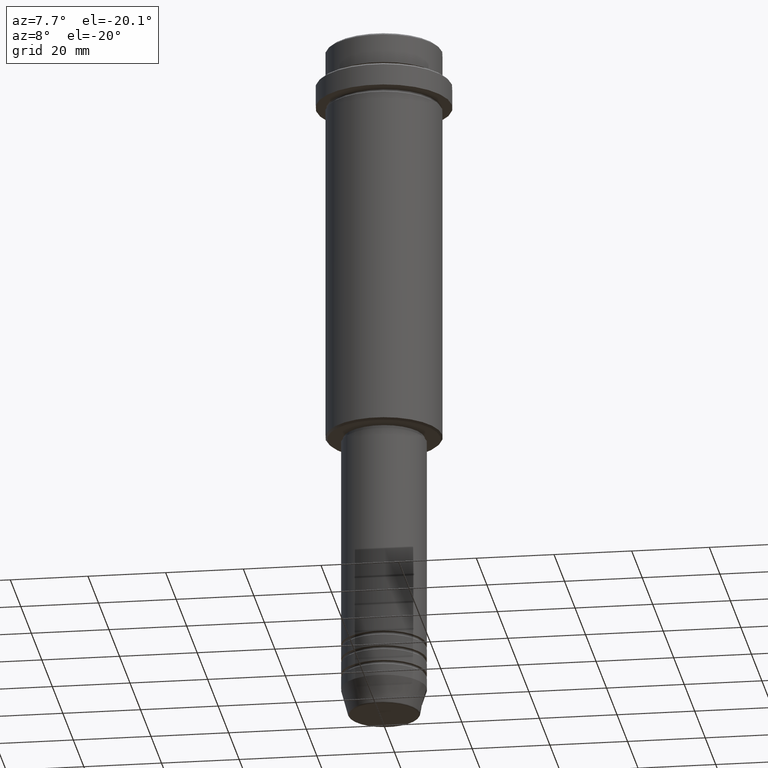
[diagram: clean part render]
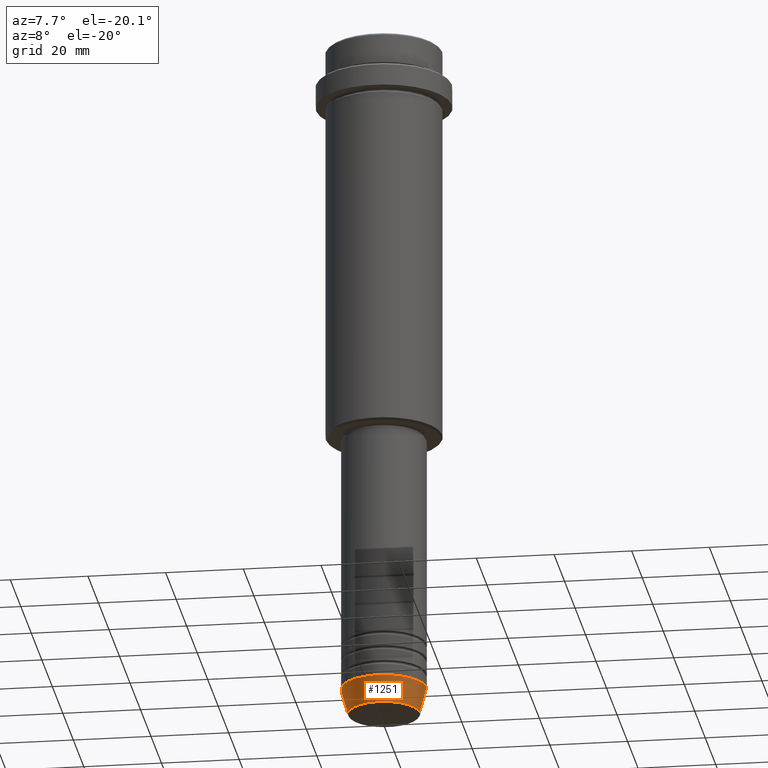
[diagram: same view with one face highlighted and labeled with its STEP entity id]
A machine part, auxiliary view. The second image highlights one B-rep face of the part: STEP entity #1251.
In plain terms, the highlighted conical surface has half-angle 15 deg.
Its self-contained STEP definition (entity closure, byte-faithful):
#5 = FACE_OUTER_BOUND ( 'NONE', #911, .T. ) ;
#76 = DIRECTION ( 'NONE',  ( -0.000000000000000000, -0.000000000000000000, 1.000000000000000000 ) ) ;
#97 = EDGE_CURVE ( 'NONE', #1148, #491, #411, .T. ) ;
#173 = VECTOR ( 'NONE', #583, 1000.000000000000000 ) ;
#210 = CARTESIAN_POINT ( 'NONE',  ( -9.223655072137194821, 1.238341722557647596E-15, -179.6294095225512422 ) ) ;
#244 = ORIENTED_EDGE ( 'NONE', *, *, #97, .F. ) ;
#303 = DIRECTION ( 'NONE',  ( 1.000000000000000000, 0.000000000000000000, 0.000000000000000000 ) ) ;
#330 = ORIENTED_EDGE ( 'NONE', *, *, #942, .F. ) ;
#386 = CARTESIAN_POINT ( 'NONE',  ( 11.00000000000000000, 0.000000000000000000, -173.0000000000000284 ) ) ;
#411 = CIRCLE ( 'NONE', #1208, 11.00000000000000000 ) ;
#417 = CIRCLE ( 'NONE', #1214, 9.223655072137194821 ) ;
#430 = DIRECTION ( 'NONE',  ( 1.000000000000000000, 0.000000000000000000, 0.000000000000000000 ) ) ;
#436 = CARTESIAN_POINT ( 'NONE',  ( -11.00000000000000000, 1.347111479062088405E-15, -173.0000000000000284 ) ) ;
#491 = VERTEX_POINT ( 'NONE', #386 ) ;
#556 = VECTOR ( 'NONE', #699, 1000.000000000000000 ) ;
#583 = DIRECTION ( 'NONE',  ( 0.2588190451025213501, 0.000000000000000000, 0.9659258262890680902 ) ) ;
#592 = CONICAL_SURFACE ( 'NONE', #1040, 11.00000000000000000, 0.2617993877991500740 ) ;
#676 = LINE ( 'NONE', #904, #173 ) ;
#699 = DIRECTION ( 'NONE',  ( -0.2588190451025213501, 3.169619151431772337E-17, 0.9659258262890680902 ) ) ;
#764 = CARTESIAN_POINT ( 'NONE',  ( 0.000000000000000000, 0.000000000000000000, -173.0000000000000284 ) ) ;
#816 = ORIENTED_EDGE ( 'NONE', *, *, #1175, .T. ) ;
#904 = CARTESIAN_POINT ( 'NONE',  ( 11.00000000000000000, 0.000000000000000000, -173.0000000000000284 ) ) ;
#910 = CARTESIAN_POINT ( 'NONE',  ( 9.223655072137194821, 0.000000000000000000, -179.6294095225512422 ) ) ;
#911 = EDGE_LOOP ( 'NONE', ( #330, #816, #1254, #244 ) ) ;
#942 = EDGE_CURVE ( 'NONE', #1219, #1148, #1414, .T. ) ;
#966 = VERTEX_POINT ( 'NONE', #910 ) ;
#980 = DIRECTION ( 'NONE',  ( -0.000000000000000000, -0.000000000000000000, 1.000000000000000000 ) ) ;
#986 = DIRECTION ( 'NONE',  ( -0.000000000000000000, -0.000000000000000000, 1.000000000000000000 ) ) ;
#991 = DIRECTION ( 'NONE',  ( 1.000000000000000000, 0.000000000000000000, 0.000000000000000000 ) ) ;
#1040 = AXIS2_PLACEMENT_3D ( 'NONE', #1408, #986, #991 ) ;
#1072 = EDGE_CURVE ( 'NONE', #966, #491, #676, .T. ) ;
#1148 = VERTEX_POINT ( 'NONE', #1248 ) ;
#1175 = EDGE_CURVE ( 'NONE', #1219, #966, #417, .T. ) ;
#1208 = AXIS2_PLACEMENT_3D ( 'NONE', #764, #76, #303 ) ;
#1214 = AXIS2_PLACEMENT_3D ( 'NONE', #1299, #980, #430 ) ;
#1219 = VERTEX_POINT ( 'NONE', #210 ) ;
#1248 = CARTESIAN_POINT ( 'NONE',  ( -11.00000000000000000, 1.347111479062088405E-15, -173.0000000000000284 ) ) ;
#1251 = ADVANCED_FACE ( 'NONE', ( #5 ), #592, .T. ) ;
#1254 = ORIENTED_EDGE ( 'NONE', *, *, #1072, .T. ) ;
#1299 = CARTESIAN_POINT ( 'NONE',  ( 0.000000000000000000, 0.000000000000000000, -179.6294095225512422 ) ) ;
#1408 = CARTESIAN_POINT ( 'NONE',  ( 0.000000000000000000, 0.000000000000000000, -173.0000000000000284 ) ) ;
#1414 = LINE ( 'NONE', #436, #556 ) ;